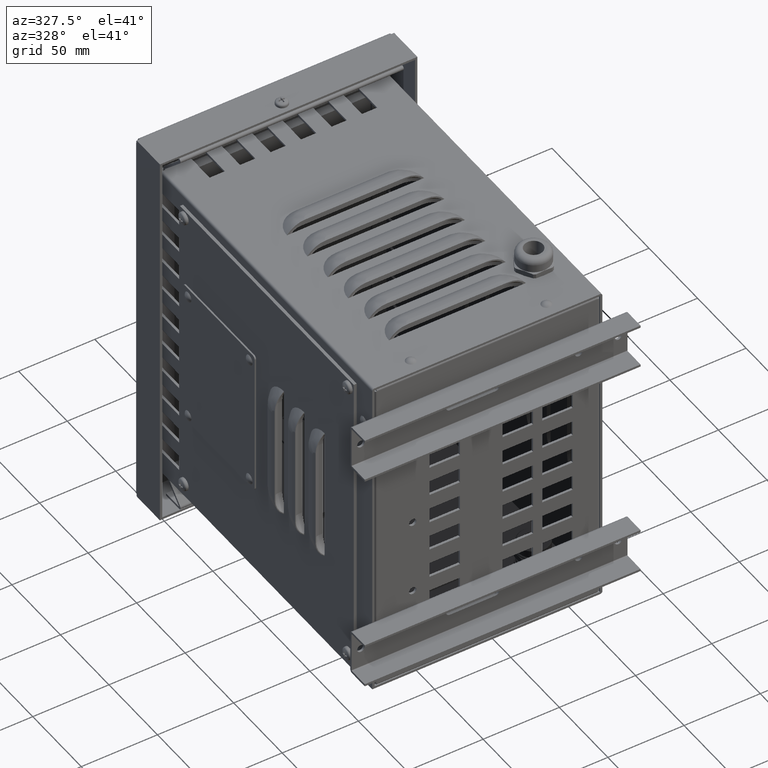
[diagram: clean part render]
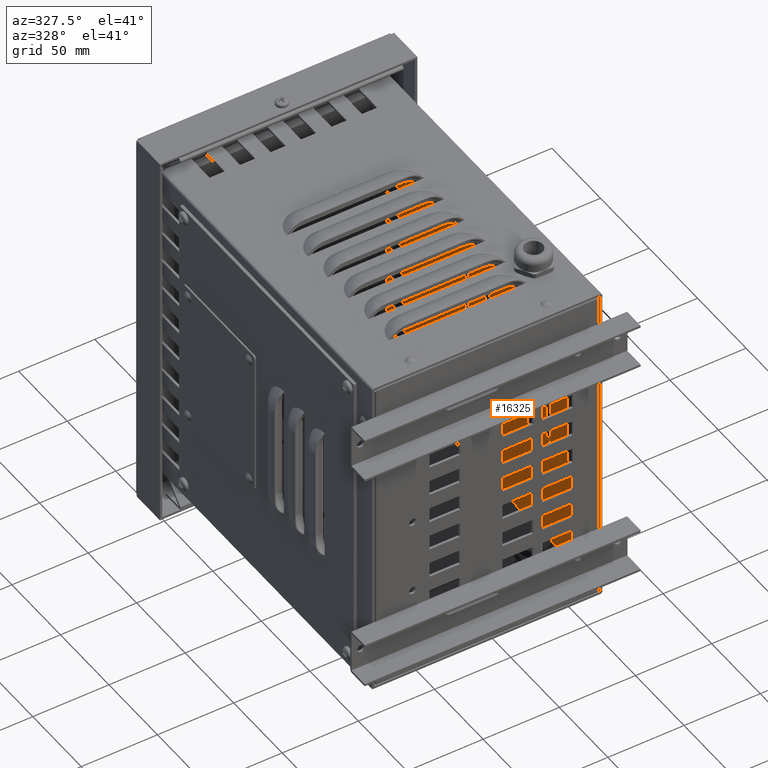
[diagram: same view with one face highlighted and labeled with its STEP entity id]
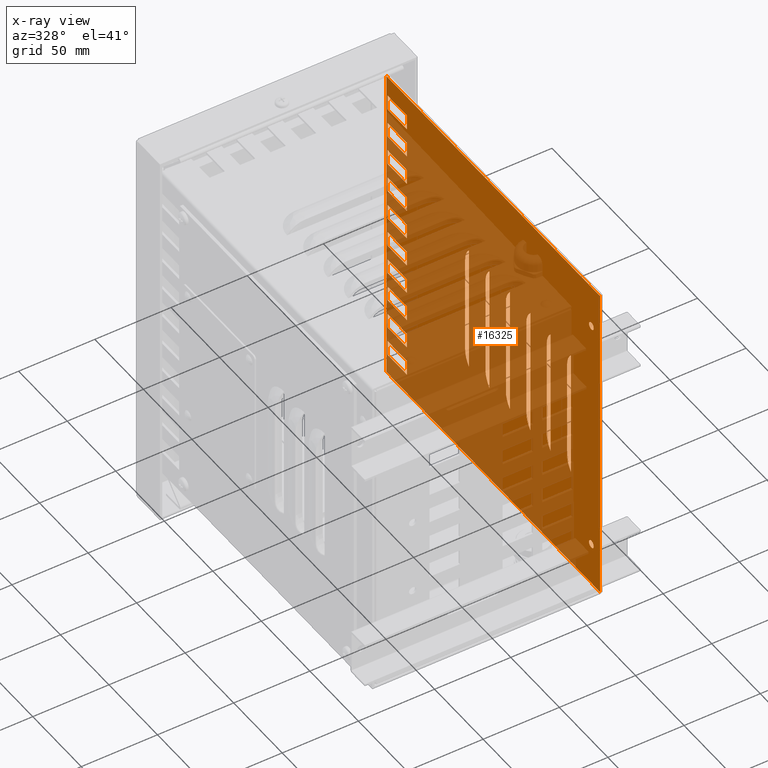
[diagram: x-ray of the same camera — body ghosted, the highlighted face saturated]
A machine part, auxiliary view. The second image highlights one B-rep face of the part: STEP entity #16325.
The next image is the same camera in x-ray: the body ghosted, the highlighted face saturated — about 69% of this face is hidden behind the body in this view.
In plain terms, the highlighted planar face has unit normal (1, -0, -0).
Its self-contained STEP definition (entity closure, byte-faithful):
#399=FACE_BOUND('',#3260,.T.);
#400=FACE_BOUND('',#3261,.T.);
#401=FACE_BOUND('',#3262,.T.);
#402=FACE_BOUND('',#3263,.T.);
#403=FACE_BOUND('',#3264,.T.);
#404=FACE_BOUND('',#3265,.T.);
#405=FACE_BOUND('',#3266,.T.);
#406=FACE_BOUND('',#3267,.T.);
#407=FACE_BOUND('',#3268,.T.);
#408=FACE_BOUND('',#3269,.T.);
#409=FACE_BOUND('',#3270,.T.);
#410=FACE_BOUND('',#3271,.T.);
#411=FACE_BOUND('',#3272,.T.);
#412=FACE_BOUND('',#3273,.T.);
#413=FACE_BOUND('',#3274,.T.);
#414=FACE_BOUND('',#3275,.T.);
#415=FACE_BOUND('',#3276,.T.);
#416=FACE_BOUND('',#3277,.T.);
#830=PLANE('',#17696);
#2345=FACE_OUTER_BOUND('',#3259,.T.);
#3259=EDGE_LOOP('',(#13436,#13437,#13438,#13439,#13440,#13441));
#3260=EDGE_LOOP('',(#13442,#13443,#13444,#13445));
#3261=EDGE_LOOP('',(#13446,#13447,#13448,#13449));
#3262=EDGE_LOOP('',(#13450,#13451,#13452,#13453));
#3263=EDGE_LOOP('',(#13454,#13455,#13456,#13457));
#3264=EDGE_LOOP('',(#13458,#13459,#13460,#13461));
#3265=EDGE_LOOP('',(#13462,#13463,#13464,#13465));
#3266=EDGE_LOOP('',(#13466,#13467,#13468,#13469));
#3267=EDGE_LOOP('',(#13470,#13471,#13472,#13473));
#3268=EDGE_LOOP('',(#13474,#13475,#13476,#13477));
#3269=EDGE_LOOP('',(#13478,#13479,#13480,#13481));
#3270=EDGE_LOOP('',(#13482,#13483,#13484,#13485));
#3271=EDGE_LOOP('',(#13486));
#3272=EDGE_LOOP('',(#13487));
#3273=EDGE_LOOP('',(#13488,#13489,#13490,#13491));
#3274=EDGE_LOOP('',(#13492,#13493,#13494,#13495));
#3275=EDGE_LOOP('',(#13496,#13497,#13498,#13499));
#3276=EDGE_LOOP('',(#13500,#13501,#13502,#13503));
#3277=EDGE_LOOP('',(#13504,#13505,#13506,#13507));
#3901=LINE('',#22993,#5454);
#4033=LINE('',#23303,#5586);
#4035=LINE('',#23312,#5588);
#4313=LINE('',#24633,#5866);
#4329=LINE('',#24676,#5882);
#4334=LINE('',#24689,#5887);
#4340=LINE('',#24730,#5893);
#4345=LINE('',#24743,#5898);
#4351=LINE('',#24784,#5904);
#4356=LINE('',#24797,#5909);
#4362=LINE('',#24838,#5915);
#4367=LINE('',#24851,#5920);
#4373=LINE('',#24892,#5926);
#4378=LINE('',#24905,#5931);
#4412=LINE('',#25166,#5965);
#4415=LINE('',#25170,#5968);
#4424=LINE('',#25246,#5977);
#4428=LINE('',#25253,#5981);
#4431=LINE('',#25259,#5984);
#4433=LINE('',#25262,#5986);
#4436=LINE('',#25270,#5989);
#4440=LINE('',#25277,#5993);
#4443=LINE('',#25283,#5996);
#4445=LINE('',#25286,#5998);
#4448=LINE('',#25294,#6001);
#4452=LINE('',#25301,#6005);
#4455=LINE('',#25307,#6008);
#4457=LINE('',#25310,#6010);
#4460=LINE('',#25318,#6013);
#4464=LINE('',#25325,#6017);
#4467=LINE('',#25331,#6020);
#4469=LINE('',#25334,#6022);
#4472=LINE('',#25342,#6025);
#4476=LINE('',#25349,#6029);
#4479=LINE('',#25355,#6032);
#4481=LINE('',#25358,#6034);
#4486=LINE('',#25378,#6039);
#4490=LINE('',#25385,#6043);
#4493=LINE('',#25391,#6046);
#4495=LINE('',#25394,#6048);
#4498=LINE('',#25402,#6051);
#4502=LINE('',#25409,#6055);
#4505=LINE('',#25415,#6058);
#4507=LINE('',#25418,#6060);
#4510=LINE('',#25426,#6063);
#4514=LINE('',#25433,#6067);
#4517=LINE('',#25439,#6070);
#4519=LINE('',#25442,#6072);
#4522=LINE('',#25450,#6075);
#4526=LINE('',#25457,#6079);
#4529=LINE('',#25463,#6082);
#4531=LINE('',#25466,#6084);
#4534=LINE('',#25474,#6087);
#4538=LINE('',#25481,#6091);
#4541=LINE('',#25487,#6094);
#4543=LINE('',#25490,#6096);
#4693=LINE('',#25814,#6246);
#4694=LINE('',#25817,#6247);
#5454=VECTOR('',#18555,10.);
#5586=VECTOR('',#18823,10.);
#5588=VECTOR('',#18835,10.);
#5866=VECTOR('',#19789,10.);
#5882=VECTOR('',#19835,10.);
#5887=VECTOR('',#19848,10.);
#5893=VECTOR('',#19872,10.);
#5898=VECTOR('',#19885,10.);
#5904=VECTOR('',#19909,10.);
#5909=VECTOR('',#19922,10.);
#5915=VECTOR('',#19946,10.);
#5920=VECTOR('',#19959,10.);
#5926=VECTOR('',#19983,10.);
#5931=VECTOR('',#19996,10.);
#5965=VECTOR('',#20164,10.);
#5968=VECTOR('',#20169,10.);
#5977=VECTOR('',#20212,10.);
#5981=VECTOR('',#20218,10.);
#5984=VECTOR('',#20223,10.);
#5986=VECTOR('',#20227,10.);
#5989=VECTOR('',#20232,10.);
#5993=VECTOR('',#20238,10.);
#5996=VECTOR('',#20243,10.);
#5998=VECTOR('',#20247,10.);
#6001=VECTOR('',#20252,10.);
#6005=VECTOR('',#20258,10.);
#6008=VECTOR('',#20263,10.);
#6010=VECTOR('',#20267,10.);
#6013=VECTOR('',#20272,10.);
#6017=VECTOR('',#20278,10.);
#6020=VECTOR('',#20283,10.);
#6022=VECTOR('',#20287,10.);
#6025=VECTOR('',#20292,10.);
#6029=VECTOR('',#20298,10.);
#6032=VECTOR('',#20303,10.);
#6034=VECTOR('',#20307,10.);
#6039=VECTOR('',#20326,10.);
#6043=VECTOR('',#20332,10.);
#6046=VECTOR('',#20337,10.);
#6048=VECTOR('',#20341,10.);
#6051=VECTOR('',#20346,10.);
#6055=VECTOR('',#20352,10.);
#6058=VECTOR('',#20357,10.);
#6060=VECTOR('',#20361,10.);
#6063=VECTOR('',#20366,10.);
#6067=VECTOR('',#20372,10.);
#6070=VECTOR('',#20377,10.);
#6072=VECTOR('',#20381,10.);
#6075=VECTOR('',#20386,10.);
#6079=VECTOR('',#20392,10.);
#6082=VECTOR('',#20397,10.);
#6084=VECTOR('',#20401,10.);
#6087=VECTOR('',#20406,10.);
#6091=VECTOR('',#20412,10.);
#6094=VECTOR('',#20417,10.);
#6096=VECTOR('',#20421,10.);
#6246=VECTOR('',#20709,10.);
#6247=VECTOR('',#20714,10.);
#7181=CIRCLE('',#17434,14.);
#7183=CIRCLE('',#17438,14.);
#7189=CIRCLE('',#17447,14.);
#7191=CIRCLE('',#17451,14.);
#7197=CIRCLE('',#17460,14.);
#7199=CIRCLE('',#17464,14.);
#7205=CIRCLE('',#17473,14.);
#7207=CIRCLE('',#17477,14.);
#7213=CIRCLE('',#17486,14.);
#7215=CIRCLE('',#17490,14.);
#7261=CIRCLE('',#17554,14.);
#7263=CIRCLE('',#17557,14.);
#7278=CIRCLE('',#17599,2.4);
#7280=CIRCLE('',#17602,2.4);
#7625=VERTEX_POINT('',#22989);
#7627=VERTEX_POINT('',#22992);
#7735=VERTEX_POINT('',#23297);
#7737=VERTEX_POINT('',#23301);
#7739=VERTEX_POINT('',#23310);
#8019=VERTEX_POINT('',#24664);
#8020=VERTEX_POINT('',#24665);
#8024=VERTEX_POINT('',#24675);
#8026=VERTEX_POINT('',#24681);
#8031=VERTEX_POINT('',#24718);
#8032=VERTEX_POINT('',#24719);
#8036=VERTEX_POINT('',#24729);
#8038=VERTEX_POINT('',#24735);
#8043=VERTEX_POINT('',#24772);
#8044=VERTEX_POINT('',#24773);
#8048=VERTEX_POINT('',#24783);
#8050=VERTEX_POINT('',#24789);
#8055=VERTEX_POINT('',#24826);
#8056=VERTEX_POINT('',#24827);
#8060=VERTEX_POINT('',#24837);
#8062=VERTEX_POINT('',#24843);
#8067=VERTEX_POINT('',#24880);
#8068=VERTEX_POINT('',#24881);
#8072=VERTEX_POINT('',#24891);
#8074=VERTEX_POINT('',#24897);
#8119=VERTEX_POINT('',#25144);
#8120=VERTEX_POINT('',#25145);
#8124=VERTEX_POINT('',#25155);
#8125=VERTEX_POINT('',#25156);
#8141=VERTEX_POINT('',#25243);
#8142=VERTEX_POINT('',#25245);
#8144=VERTEX_POINT('',#25251);
#8146=VERTEX_POINT('',#25257);
#8149=VERTEX_POINT('',#25267);
#8150=VERTEX_POINT('',#25269);
#8152=VERTEX_POINT('',#25275);
#8154=VERTEX_POINT('',#25281);
#8157=VERTEX_POINT('',#25291);
#8158=VERTEX_POINT('',#25293);
#8160=VERTEX_POINT('',#25299);
#8162=VERTEX_POINT('',#25305);
#8165=VERTEX_POINT('',#25315);
#8166=VERTEX_POINT('',#25317);
#8168=VERTEX_POINT('',#25323);
#8170=VERTEX_POINT('',#25329);
#8173=VERTEX_POINT('',#25339);
#8174=VERTEX_POINT('',#25341);
#8176=VERTEX_POINT('',#25347);
#8178=VERTEX_POINT('',#25353);
#8180=VERTEX_POINT('',#25362);
#8182=VERTEX_POINT('',#25368);
#8185=VERTEX_POINT('',#25375);
#8186=VERTEX_POINT('',#25377);
#8188=VERTEX_POINT('',#25383);
#8190=VERTEX_POINT('',#25389);
#8193=VERTEX_POINT('',#25399);
#8194=VERTEX_POINT('',#25401);
#8196=VERTEX_POINT('',#25407);
#8198=VERTEX_POINT('',#25413);
#8201=VERTEX_POINT('',#25423);
#8202=VERTEX_POINT('',#25425);
#8204=VERTEX_POINT('',#25431);
#8206=VERTEX_POINT('',#25437);
#8209=VERTEX_POINT('',#25447);
#8210=VERTEX_POINT('',#25449);
#8212=VERTEX_POINT('',#25455);
#8214=VERTEX_POINT('',#25461);
#8217=VERTEX_POINT('',#25471);
#8218=VERTEX_POINT('',#25473);
#8220=VERTEX_POINT('',#25479);
#8222=VERTEX_POINT('',#25485);
#8327=VERTEX_POINT('',#25812);
#9045=EDGE_CURVE('',#7627,#7625,#3901,.T.);
#9206=EDGE_CURVE('',#7735,#7737,#4033,.T.);
#9211=EDGE_CURVE('',#7737,#7739,#4035,.T.);
#9683=EDGE_CURVE('',#7735,#7625,#4313,.T.);
#9699=EDGE_CURVE('',#8019,#8020,#7181,.T.);
#9704=EDGE_CURVE('',#8020,#8024,#4329,.T.);
#9707=EDGE_CURVE('',#8024,#8026,#7183,.T.);
#9711=EDGE_CURVE('',#8026,#8019,#4334,.T.);
#9718=EDGE_CURVE('',#8031,#8032,#7189,.T.);
#9723=EDGE_CURVE('',#8032,#8036,#4340,.T.);
#9726=EDGE_CURVE('',#8036,#8038,#7191,.T.);
#9730=EDGE_CURVE('',#8038,#8031,#4345,.T.);
#9737=EDGE_CURVE('',#8043,#8044,#7197,.T.);
#9742=EDGE_CURVE('',#8044,#8048,#4351,.T.);
#9745=EDGE_CURVE('',#8048,#8050,#7199,.T.);
#9749=EDGE_CURVE('',#8050,#8043,#4356,.T.);
#9756=EDGE_CURVE('',#8055,#8056,#7205,.T.);
#9761=EDGE_CURVE('',#8056,#8060,#4362,.T.);
#9764=EDGE_CURVE('',#8060,#8062,#7207,.T.);
#9768=EDGE_CURVE('',#8062,#8055,#4367,.T.);
#9775=EDGE_CURVE('',#8067,#8068,#7213,.T.);
#9780=EDGE_CURVE('',#8068,#8072,#4373,.T.);
#9783=EDGE_CURVE('',#8072,#8074,#7215,.T.);
#9787=EDGE_CURVE('',#8074,#8067,#4378,.T.);
#9859=EDGE_CURVE('',#8119,#8120,#7261,.T.);
#9864=EDGE_CURVE('',#8124,#8125,#7263,.T.);
#9869=EDGE_CURVE('',#8125,#8119,#4412,.T.);
#9872=EDGE_CURVE('',#8120,#8124,#4415,.T.);
#9893=EDGE_CURVE('',#8142,#8141,#4424,.T.);
#9897=EDGE_CURVE('',#8141,#8144,#4428,.T.);
#9900=EDGE_CURVE('',#8144,#8146,#4431,.T.);
#9902=EDGE_CURVE('',#8146,#8142,#4433,.T.);
#9905=EDGE_CURVE('',#8150,#8149,#4436,.T.);
#9909=EDGE_CURVE('',#8149,#8152,#4440,.T.);
#9912=EDGE_CURVE('',#8152,#8154,#4443,.T.);
#9914=EDGE_CURVE('',#8154,#8150,#4445,.T.);
#9917=EDGE_CURVE('',#8158,#8157,#4448,.T.);
#9921=EDGE_CURVE('',#8157,#8160,#4452,.T.);
#9924=EDGE_CURVE('',#8160,#8162,#4455,.T.);
#9926=EDGE_CURVE('',#8162,#8158,#4457,.T.);
#9929=EDGE_CURVE('',#8166,#8165,#4460,.T.);
#9933=EDGE_CURVE('',#8165,#8168,#4464,.T.);
#9936=EDGE_CURVE('',#8168,#8170,#4467,.T.);
#9938=EDGE_CURVE('',#8170,#8166,#4469,.T.);
#9941=EDGE_CURVE('',#8174,#8173,#4472,.T.);
#9945=EDGE_CURVE('',#8173,#8176,#4476,.T.);
#9948=EDGE_CURVE('',#8176,#8178,#4479,.T.);
#9950=EDGE_CURVE('',#8178,#8174,#4481,.T.);
#9953=EDGE_CURVE('',#8180,#8180,#7278,.T.);
#9956=EDGE_CURVE('',#8182,#8182,#7280,.T.);
#9959=EDGE_CURVE('',#8186,#8185,#4486,.T.);
#9963=EDGE_CURVE('',#8185,#8188,#4490,.T.);
#9966=EDGE_CURVE('',#8188,#8190,#4493,.T.);
#9968=EDGE_CURVE('',#8190,#8186,#4495,.T.);
#9971=EDGE_CURVE('',#8194,#8193,#4498,.T.);
#9975=EDGE_CURVE('',#8193,#8196,#4502,.T.);
#9978=EDGE_CURVE('',#8196,#8198,#4505,.T.);
#9980=EDGE_CURVE('',#8198,#8194,#4507,.T.);
#9983=EDGE_CURVE('',#8202,#8201,#4510,.T.);
#9987=EDGE_CURVE('',#8201,#8204,#4514,.T.);
#9990=EDGE_CURVE('',#8204,#8206,#4517,.T.);
#9992=EDGE_CURVE('',#8206,#8202,#4519,.T.);
#9995=EDGE_CURVE('',#8210,#8209,#4522,.T.);
#9999=EDGE_CURVE('',#8209,#8212,#4526,.T.);
#10002=EDGE_CURVE('',#8212,#8214,#4529,.T.);
#10004=EDGE_CURVE('',#8214,#8210,#4531,.T.);
#10007=EDGE_CURVE('',#8218,#8217,#4534,.T.);
#10011=EDGE_CURVE('',#8217,#8220,#4538,.T.);
#10014=EDGE_CURVE('',#8220,#8222,#4541,.T.);
#10016=EDGE_CURVE('',#8222,#8218,#4543,.T.);
#10179=EDGE_CURVE('',#8327,#7739,#4693,.T.);
#10180=EDGE_CURVE('',#8327,#7627,#4694,.T.);
#13436=ORIENTED_EDGE('',*,*,#9206,.T.);
#13437=ORIENTED_EDGE('',*,*,#9211,.T.);
#13438=ORIENTED_EDGE('',*,*,#10179,.F.);
#13439=ORIENTED_EDGE('',*,*,#10180,.T.);
#13440=ORIENTED_EDGE('',*,*,#9045,.T.);
#13441=ORIENTED_EDGE('',*,*,#9683,.F.);
#13442=ORIENTED_EDGE('',*,*,#9707,.T.);
#13443=ORIENTED_EDGE('',*,*,#9711,.T.);
#13444=ORIENTED_EDGE('',*,*,#9699,.T.);
#13445=ORIENTED_EDGE('',*,*,#9704,.T.);
#13446=ORIENTED_EDGE('',*,*,#9726,.T.);
#13447=ORIENTED_EDGE('',*,*,#9730,.T.);
#13448=ORIENTED_EDGE('',*,*,#9718,.T.);
#13449=ORIENTED_EDGE('',*,*,#9723,.T.);
#13450=ORIENTED_EDGE('',*,*,#9745,.T.);
#13451=ORIENTED_EDGE('',*,*,#9749,.T.);
#13452=ORIENTED_EDGE('',*,*,#9737,.T.);
#13453=ORIENTED_EDGE('',*,*,#9742,.T.);
#13454=ORIENTED_EDGE('',*,*,#9764,.T.);
#13455=ORIENTED_EDGE('',*,*,#9768,.T.);
#13456=ORIENTED_EDGE('',*,*,#9756,.T.);
#13457=ORIENTED_EDGE('',*,*,#9761,.T.);
#13458=ORIENTED_EDGE('',*,*,#9783,.T.);
#13459=ORIENTED_EDGE('',*,*,#9787,.T.);
#13460=ORIENTED_EDGE('',*,*,#9775,.T.);
#13461=ORIENTED_EDGE('',*,*,#9780,.T.);
#13462=ORIENTED_EDGE('',*,*,#9864,.T.);
#13463=ORIENTED_EDGE('',*,*,#9869,.T.);
#13464=ORIENTED_EDGE('',*,*,#9859,.T.);
#13465=ORIENTED_EDGE('',*,*,#9872,.T.);
#13466=ORIENTED_EDGE('',*,*,#9893,.T.);
#13467=ORIENTED_EDGE('',*,*,#9897,.T.);
#13468=ORIENTED_EDGE('',*,*,#9900,.T.);
#13469=ORIENTED_EDGE('',*,*,#9902,.T.);
#13470=ORIENTED_EDGE('',*,*,#9905,.T.);
#13471=ORIENTED_EDGE('',*,*,#9909,.T.);
#13472=ORIENTED_EDGE('',*,*,#9912,.T.);
#13473=ORIENTED_EDGE('',*,*,#9914,.T.);
#13474=ORIENTED_EDGE('',*,*,#9917,.T.);
#13475=ORIENTED_EDGE('',*,*,#9921,.T.);
#13476=ORIENTED_EDGE('',*,*,#9924,.T.);
#13477=ORIENTED_EDGE('',*,*,#9926,.T.);
#13478=ORIENTED_EDGE('',*,*,#9929,.T.);
#13479=ORIENTED_EDGE('',*,*,#9933,.T.);
#13480=ORIENTED_EDGE('',*,*,#9936,.T.);
#13481=ORIENTED_EDGE('',*,*,#9938,.T.);
#13482=ORIENTED_EDGE('',*,*,#9941,.T.);
#13483=ORIENTED_EDGE('',*,*,#9945,.T.);
#13484=ORIENTED_EDGE('',*,*,#9948,.T.);
#13485=ORIENTED_EDGE('',*,*,#9950,.T.);
#13486=ORIENTED_EDGE('',*,*,#9953,.T.);
#13487=ORIENTED_EDGE('',*,*,#9956,.T.);
#13488=ORIENTED_EDGE('',*,*,#9959,.T.);
#13489=ORIENTED_EDGE('',*,*,#9963,.T.);
#13490=ORIENTED_EDGE('',*,*,#9966,.T.);
#13491=ORIENTED_EDGE('',*,*,#9968,.T.);
#13492=ORIENTED_EDGE('',*,*,#9971,.T.);
#13493=ORIENTED_EDGE('',*,*,#9975,.T.);
#13494=ORIENTED_EDGE('',*,*,#9978,.T.);
#13495=ORIENTED_EDGE('',*,*,#9980,.T.);
#13496=ORIENTED_EDGE('',*,*,#9983,.T.);
#13497=ORIENTED_EDGE('',*,*,#9987,.T.);
#13498=ORIENTED_EDGE('',*,*,#9990,.T.);
#13499=ORIENTED_EDGE('',*,*,#9992,.T.);
#13500=ORIENTED_EDGE('',*,*,#9995,.T.);
#13501=ORIENTED_EDGE('',*,*,#9999,.T.);
#13502=ORIENTED_EDGE('',*,*,#10002,.T.);
#13503=ORIENTED_EDGE('',*,*,#10004,.T.);
#13504=ORIENTED_EDGE('',*,*,#10007,.T.);
#13505=ORIENTED_EDGE('',*,*,#10011,.T.);
#13506=ORIENTED_EDGE('',*,*,#10014,.T.);
#13507=ORIENTED_EDGE('',*,*,#10016,.T.);
#16325=ADVANCED_FACE('',(#2345,#399,#400,#401,#402,#403,#404,#405,#406,
#407,#408,#409,#410,#411,#412,#413,#414,#415,#416),#830,.F.);
#17434=AXIS2_PLACEMENT_3D('',#24666,#19826,#19827);
#17438=AXIS2_PLACEMENT_3D('',#24682,#19840,#19841);
#17447=AXIS2_PLACEMENT_3D('',#24720,#19863,#19864);
#17451=AXIS2_PLACEMENT_3D('',#24736,#19877,#19878);
#17460=AXIS2_PLACEMENT_3D('',#24774,#19900,#19901);
#17464=AXIS2_PLACEMENT_3D('',#24790,#19914,#19915);
#17473=AXIS2_PLACEMENT_3D('',#24828,#19937,#19938);
#17477=AXIS2_PLACEMENT_3D('',#24844,#19951,#19952);
#17486=AXIS2_PLACEMENT_3D('',#24882,#19974,#19975);
#17490=AXIS2_PLACEMENT_3D('',#24898,#19988,#19989);
#17554=AXIS2_PLACEMENT_3D('',#25146,#20146,#20147);
#17557=AXIS2_PLACEMENT_3D('',#25157,#20155,#20156);
#17599=AXIS2_PLACEMENT_3D('',#25364,#20313,#20314);
#17602=AXIS2_PLACEMENT_3D('',#25370,#20320,#20321);
#17696=AXIS2_PLACEMENT_3D('',#25821,#20720,#20721);
#18555=DIRECTION('',(-3.2349155729169E-18,1.,3.23491557291718E-18));
#18823=DIRECTION('',(3.23491557291691E-18,-1.,-2.52323414687541E-18));
#18835=DIRECTION('',(3.23491557291691E-18,-1.,-2.52323414687541E-18));
#19789=DIRECTION('',(2.30314065722459E-14,-6.84367530240512E-14,1.));
#19826=DIRECTION('center_axis',(1.,3.23491557291696E-18,-1.75324607773309E-14));
#19827=DIRECTION('ref_axis',(3.09721846659277E-26,1.,2.09229459155072E-12));
#19835=DIRECTION('',(-1.75324607773309E-14,0.,-1.));
#19840=DIRECTION('center_axis',(1.,3.23491557291696E-18,-1.75324607773309E-14));
#19841=DIRECTION('ref_axis',(-1.03599234705953E-14,0.714285714283133,-0.6998542122264));
#19848=DIRECTION('',(1.75324607773309E-14,-5.38289951332934E-16,1.));
#19863=DIRECTION('center_axis',(1.,3.23491557291696E-18,-1.75324607773309E-14));
#19864=DIRECTION('ref_axis',(3.09721846659277E-26,1.,2.09229459155072E-12));
#19872=DIRECTION('',(-1.75324607773309E-14,0.,-1.));
#19877=DIRECTION('center_axis',(1.,3.23491557291696E-18,-1.75324607773309E-14));
#19878=DIRECTION('ref_axis',(-1.03599234705953E-14,0.714285714283133,-0.6998542122264));
#19885=DIRECTION('',(1.75324607773309E-14,-5.38289951332934E-16,1.));
#19900=DIRECTION('center_axis',(1.,3.23491557291696E-18,-1.75324607773309E-14));
#19901=DIRECTION('ref_axis',(3.09721846659277E-26,1.,2.09229459155072E-12));
#19909=DIRECTION('',(-1.75324607773309E-14,0.,-1.));
#19914=DIRECTION('center_axis',(1.,3.23491557291696E-18,-1.75324607773309E-14));
#19915=DIRECTION('ref_axis',(-1.03599234705953E-14,0.714285714283133,-0.6998542122264));
#19922=DIRECTION('',(1.75324607773309E-14,-5.38289951332934E-16,1.));
#19937=DIRECTION('center_axis',(1.,3.23491557291696E-18,-1.75324607773309E-14));
#19938=DIRECTION('ref_axis',(3.09721846659277E-26,1.,2.09229459155072E-12));
#19946=DIRECTION('',(-1.75324607773309E-14,0.,-1.));
#19951=DIRECTION('center_axis',(1.,3.23491557291696E-18,-1.75324607773309E-14));
#19952=DIRECTION('ref_axis',(-1.03599234705953E-14,0.714285714283133,-0.6998542122264));
#19959=DIRECTION('',(1.75324607773309E-14,-5.38289951332934E-16,1.));
#19974=DIRECTION('center_axis',(1.,3.23491557291696E-18,-1.75324607773309E-14));
#19975=DIRECTION('ref_axis',(3.09721846659277E-26,1.,2.09229459155072E-12));
#19983=DIRECTION('',(-1.75324607773309E-14,0.,-1.));
#19988=DIRECTION('center_axis',(1.,3.23491557291696E-18,-1.75324607773309E-14));
#19989=DIRECTION('ref_axis',(-1.03599234705953E-14,0.714285714283133,-0.6998542122264));
#19996=DIRECTION('',(1.75324607773309E-14,-5.38289951332934E-16,1.));
#20146=DIRECTION('center_axis',(1.,3.23491557291696E-18,-1.75324607773309E-14));
#20147=DIRECTION('ref_axis',(3.09721846659277E-26,1.,2.09229459155072E-12));
#20155=DIRECTION('center_axis',(1.,3.23491557291696E-18,-1.75324607773309E-14));
#20156=DIRECTION('ref_axis',(-1.03599234705953E-14,0.714285714283133,-0.6998542122264));
#20164=DIRECTION('',(1.75324607773309E-14,-5.38289951332934E-16,1.));
#20169=DIRECTION('',(-1.75324607773309E-14,-2.67310091770039E-32,-1.));
#20212=DIRECTION('',(1.75324607773309E-14,0.,1.));
#20218=DIRECTION('',(3.23491557291696E-18,-1.,-5.67160304001434E-32));
#20223=DIRECTION('',(-1.75324607773309E-14,0.,-1.));
#20227=DIRECTION('',(-3.23491557291696E-18,1.,5.67160304001434E-32));
#20232=DIRECTION('',(3.23491557291696E-18,-1.,-5.6716030400144E-32));
#20238=DIRECTION('',(-1.75324607773309E-14,0.,-1.));
#20243=DIRECTION('',(-3.23491557291696E-18,1.,5.6716030400144E-32));
#20247=DIRECTION('',(1.75324607773309E-14,0.,1.));
#20252=DIRECTION('',(3.23491557291696E-18,-1.,-5.6716030400144E-32));
#20258=DIRECTION('',(-1.75324607773309E-14,0.,-1.));
#20263=DIRECTION('',(-3.23491557291696E-18,1.,5.6716030400144E-32));
#20267=DIRECTION('',(1.75324607773309E-14,0.,1.));
#20272=DIRECTION('',(-1.75324607773309E-14,0.,-1.));
#20278=DIRECTION('',(-3.23491557291696E-18,1.,5.67160304001427E-32));
#20283=DIRECTION('',(1.75324607773309E-14,0.,1.));
#20287=DIRECTION('',(3.23491557291696E-18,-1.,-5.67160304001427E-32));
#20292=DIRECTION('',(3.23491557291696E-18,-1.,-5.67160304001427E-32));
#20298=DIRECTION('',(-1.75324607773309E-14,0.,-1.));
#20303=DIRECTION('',(-3.23491557291696E-18,1.,5.67160304001427E-32));
#20307=DIRECTION('',(1.75324607773309E-14,0.,1.));
#20313=DIRECTION('center_axis',(1.,3.23491557291696E-18,-1.75324607773309E-14));
#20314=DIRECTION('ref_axis',(1.77635683940025E-14,0.,1.));
#20320=DIRECTION('center_axis',(1.,3.23491557291696E-18,-1.75324607773309E-14));
#20321=DIRECTION('ref_axis',(2.368475785867E-14,0.,1.));
#20326=DIRECTION('',(1.75324607773309E-14,0.,1.));
#20332=DIRECTION('',(3.23491557291696E-18,-1.,-5.67160304001427E-32));
#20337=DIRECTION('',(-1.75324607773309E-14,0.,-1.));
#20341=DIRECTION('',(-3.23491557291696E-18,1.,5.67160304001427E-32));
#20346=DIRECTION('',(-1.75324607773309E-14,0.,-1.));
#20352=DIRECTION('',(-3.23491557291696E-18,1.,5.6716030400144E-32));
#20357=DIRECTION('',(1.75324607773309E-14,0.,1.));
#20361=DIRECTION('',(3.23491557291696E-18,-1.,-5.6716030400144E-32));
#20366=DIRECTION('',(1.75324607773309E-14,0.,1.));
#20372=DIRECTION('',(3.23491557291696E-18,-1.,-5.6716030400144E-32));
#20377=DIRECTION('',(-1.75324607773309E-14,0.,-1.));
#20381=DIRECTION('',(-3.23491557291696E-18,1.,5.6716030400144E-32));
#20386=DIRECTION('',(3.23491557291696E-18,-1.,-5.67160304001434E-32));
#20392=DIRECTION('',(-1.75324607773309E-14,0.,-1.));
#20397=DIRECTION('',(-3.23491557291696E-18,1.,5.67160304001434E-32));
#20401=DIRECTION('',(1.75324607773309E-14,0.,1.));
#20406=DIRECTION('',(1.75324607773309E-14,0.,1.));
#20412=DIRECTION('',(3.23491557291696E-18,-1.,-5.67160304001434E-32));
#20417=DIRECTION('',(-1.75324607773309E-14,0.,-1.));
#20421=DIRECTION('',(-3.23491557291696E-18,1.,5.67160304001434E-32));
#20709=DIRECTION('',(-1.75303360221084E-14,3.23491557291712E-18,-1.));
#20714=DIRECTION('',(-3.2349155729169E-18,1.,3.23491557291718E-18));
#20720=DIRECTION('center_axis',(1.,3.23491557291696E-18,-1.75324607773309E-14));
#20721=DIRECTION('ref_axis',(-1.75324607773309E-14,3.23491557291712E-18,
-1.));
#22989=CARTESIAN_POINT('',(149.5,220.,218.499000000001));
#22992=CARTESIAN_POINT('',(149.499999999999,218.499000000002,218.498999999998));
#22993=CARTESIAN_POINT('',(149.5,110.,218.499000000001));
#23297=CARTESIAN_POINT('',(149.499999999996,220.000000000015,1.50100000000087));
#23301=CARTESIAN_POINT('',(149.499999999996,218.499000000002,1.50100000000087));
#23303=CARTESIAN_POINT('',(149.499999999996,165.000000000007,1.50100000000086));
#23310=CARTESIAN_POINT('',(149.499999999996,1.48518323372101E-11,1.50100000000087));
#23312=CARTESIAN_POINT('',(149.499999999996,165.000000000007,1.50100000000086));
#24633=CARTESIAN_POINT('',(149.5,220.,219.537296372012));
#24664=CARTESIAN_POINT('',(149.499999999999,139.000000000005,143.370791571693));
#24665=CARTESIAN_POINT('',(149.499999999999,135.000000000005,153.168750542869));
#24666=CARTESIAN_POINT('Origin',(149.499999999999,125.000000000005,143.370791571664));
#24675=CARTESIAN_POINT('',(149.499999999997,135.000000000005,67.572832600459));
#24676=CARTESIAN_POINT('',(149.499999999998,135.000000000005,110.069719878835));
#24681=CARTESIAN_POINT('',(149.499999999998,139.000000000005,77.3707915716348));
#24682=CARTESIAN_POINT('Origin',(149.499999999998,125.000000000005,77.3707915716639));
#24689=CARTESIAN_POINT('',(149.499999999998,139.000000000005,126.56971987885));
#24718=CARTESIAN_POINT('',(149.499999999999,118.000000000005,143.370791571693));
#24719=CARTESIAN_POINT('',(149.499999999999,114.000000000005,153.168750542869));
#24720=CARTESIAN_POINT('Origin',(149.499999999999,104.000000000005,143.370791571664));
#24729=CARTESIAN_POINT('',(149.499999999997,114.000000000005,67.572832600459));
#24730=CARTESIAN_POINT('',(149.499999999998,114.000000000005,110.069719878835));
#24735=CARTESIAN_POINT('',(149.499999999998,118.000000000005,77.3707915716348));
#24736=CARTESIAN_POINT('Origin',(149.499999999998,104.000000000005,77.3707915716639));
#24743=CARTESIAN_POINT('',(149.499999999998,118.000000000005,126.56971987885));
#24772=CARTESIAN_POINT('',(149.499999999999,97.0000000000054,143.370791571693));
#24773=CARTESIAN_POINT('',(149.499999999999,93.0000000000053,153.168750542869));
#24774=CARTESIAN_POINT('Origin',(149.499999999999,83.0000000000054,143.370791571664));
#24783=CARTESIAN_POINT('',(149.499999999997,93.0000000000053,67.572832600459));
#24784=CARTESIAN_POINT('',(149.499999999998,93.0000000000053,110.069719878835));
#24789=CARTESIAN_POINT('',(149.499999999998,97.0000000000054,77.3707915716348));
#24790=CARTESIAN_POINT('Origin',(149.499999999998,83.0000000000054,77.3707915716639));
#24797=CARTESIAN_POINT('',(149.499999999998,97.0000000000054,126.56971987885));
#24826=CARTESIAN_POINT('',(149.499999999999,76.0000000000054,143.370791571693));
#24827=CARTESIAN_POINT('',(149.499999999999,72.0000000000053,153.168750542869));
#24828=CARTESIAN_POINT('Origin',(149.499999999999,62.0000000000054,143.370791571664));
#24837=CARTESIAN_POINT('',(149.499999999997,72.0000000000053,67.572832600459));
#24838=CARTESIAN_POINT('',(149.499999999998,72.0000000000053,110.069719878835));
#24843=CARTESIAN_POINT('',(149.499999999998,76.0000000000054,77.3707915716348));
#24844=CARTESIAN_POINT('Origin',(149.499999999998,62.0000000000054,77.3707915716639));
#24851=CARTESIAN_POINT('',(149.499999999998,76.0000000000054,126.56971987885));
#24880=CARTESIAN_POINT('',(149.499999999999,55.0000000000054,143.370791571693));
#24881=CARTESIAN_POINT('',(149.499999999999,51.0000000000053,153.168750542869));
#24882=CARTESIAN_POINT('Origin',(149.499999999999,41.0000000000054,143.370791571664));
#24891=CARTESIAN_POINT('',(149.499999999997,51.0000000000053,67.572832600459));
#24892=CARTESIAN_POINT('',(149.499999999998,51.0000000000053,110.069719878835));
#24897=CARTESIAN_POINT('',(149.499999999998,55.0000000000054,77.3707915716348));
#24898=CARTESIAN_POINT('Origin',(149.499999999998,41.0000000000054,77.3707915716639));
#24905=CARTESIAN_POINT('',(149.499999999998,55.0000000000054,126.56971987885));
#25144=CARTESIAN_POINT('',(149.499999999999,34.0000000000054,143.370791571693));
#25145=CARTESIAN_POINT('',(149.499999999999,30.0000000000053,153.168750542869));
#25146=CARTESIAN_POINT('Origin',(149.499999999999,20.0000000000054,143.370791571664));
#25155=CARTESIAN_POINT('',(149.499999999997,30.0000000000053,67.572832600459));
#25156=CARTESIAN_POINT('',(149.499999999998,34.0000000000054,77.3707915716348));
#25157=CARTESIAN_POINT('Origin',(149.499999999998,20.0000000000054,77.3707915716639));
#25166=CARTESIAN_POINT('',(149.499999999998,34.0000000000054,126.56971987885));
#25170=CARTESIAN_POINT('',(149.499999999998,30.0000000000053,88.6707403932328));
#25243=CARTESIAN_POINT('',(149.499999999997,219.,44.9999999999983));
#25245=CARTESIAN_POINT('',(149.499999999997,219.,34.9999999999983));
#25246=CARTESIAN_POINT('',(149.499999999998,219.,77.3843240930024));
#25251=CARTESIAN_POINT('',(149.499999999997,199.,44.9999999999983));
#25253=CARTESIAN_POINT('',(149.499999999997,154.5,44.9999999999983));
#25257=CARTESIAN_POINT('',(149.499999999997,199.,34.9999999999983));
#25259=CARTESIAN_POINT('',(149.499999999997,199.,72.3843240930024));
#25262=CARTESIAN_POINT('',(149.499999999997,164.5,34.9999999999983));
#25267=CARTESIAN_POINT('',(149.499999999998,199.,84.9999999999982));
#25269=CARTESIAN_POINT('',(149.499999999998,219.,84.9999999999982));
#25270=CARTESIAN_POINT('',(149.499999999998,154.5,84.9999999999982));
#25275=CARTESIAN_POINT('',(149.499999999997,199.,74.9999999999982));
#25277=CARTESIAN_POINT('',(149.499999999998,199.,92.3843240930024));
#25281=CARTESIAN_POINT('',(149.499999999997,219.,74.9999999999982));
#25283=CARTESIAN_POINT('',(149.499999999998,164.5,74.9999999999982));
#25286=CARTESIAN_POINT('',(149.499999999998,219.,97.3843240930024));
#25291=CARTESIAN_POINT('',(149.499999999998,199.,124.999999999998));
#25293=CARTESIAN_POINT('',(149.499999999998,219.,124.999999999998));
#25294=CARTESIAN_POINT('',(149.499999999998,154.5,124.999999999998));
#25299=CARTESIAN_POINT('',(149.499999999998,199.,114.999999999998));
#25301=CARTESIAN_POINT('',(149.499999999998,199.,112.384324093002));
#25305=CARTESIAN_POINT('',(149.499999999998,219.,114.999999999998));
#25307=CARTESIAN_POINT('',(149.499999999998,164.5,114.999999999998));
#25310=CARTESIAN_POINT('',(149.499999999998,219.,117.384324093002));
#25315=CARTESIAN_POINT('',(149.499999999999,199.,154.999999999998));
#25317=CARTESIAN_POINT('',(149.499999999999,199.,164.999999999998));
#25318=CARTESIAN_POINT('',(149.499999999999,199.,132.384324093002));
#25323=CARTESIAN_POINT('',(149.499999999999,219.,154.999999999998));
#25325=CARTESIAN_POINT('',(149.499999999999,164.5,154.999999999998));
#25329=CARTESIAN_POINT('',(149.499999999999,219.,164.999999999998));
#25331=CARTESIAN_POINT('',(149.499999999999,219.,137.384324093002));
#25334=CARTESIAN_POINT('',(149.499999999999,154.5,164.999999999998));
#25339=CARTESIAN_POINT('',(149.5,199.,204.999999999998));
#25341=CARTESIAN_POINT('',(149.5,219.,204.999999999998));
#25342=CARTESIAN_POINT('',(149.5,154.5,204.999999999998));
#25347=CARTESIAN_POINT('',(149.5,199.,194.999999999998));
#25349=CARTESIAN_POINT('',(149.499999999999,199.,152.384324093002));
#25353=CARTESIAN_POINT('',(149.5,219.,194.999999999998));
#25355=CARTESIAN_POINT('',(149.5,164.5,194.999999999998));
#25358=CARTESIAN_POINT('',(149.499999999999,219.,157.384324093002));
#25362=CARTESIAN_POINT('',(149.499999999997,8.99999999999999,27.599999999998));
#25364=CARTESIAN_POINT('Origin',(149.499999999997,8.99999999999999,29.999999999998));
#25368=CARTESIAN_POINT('',(149.499999999999,8.99999999999997,187.599999999998));
#25370=CARTESIAN_POINT('Origin',(149.5,8.99999999999997,189.999999999998));
#25375=CARTESIAN_POINT('',(149.499999999999,219.,184.999999999998));
#25377=CARTESIAN_POINT('',(149.499999999999,219.,174.999999999998));
#25378=CARTESIAN_POINT('',(149.499999999999,219.,147.384324093002));
#25383=CARTESIAN_POINT('',(149.499999999999,199.,184.999999999998));
#25385=CARTESIAN_POINT('',(149.499999999999,154.5,184.999999999998));
#25389=CARTESIAN_POINT('',(149.499999999999,199.,174.999999999998));
#25391=CARTESIAN_POINT('',(149.499999999999,199.,142.384324093002));
#25394=CARTESIAN_POINT('',(149.499999999999,164.5,174.999999999998));
#25399=CARTESIAN_POINT('',(149.499999999999,199.,134.999999999998));
#25401=CARTESIAN_POINT('',(149.499999999999,199.,144.999999999998));
#25402=CARTESIAN_POINT('',(149.499999999998,199.,122.384324093002));
#25407=CARTESIAN_POINT('',(149.499999999999,219.,134.999999999998));
#25409=CARTESIAN_POINT('',(149.499999999999,164.5,134.999999999998));
#25413=CARTESIAN_POINT('',(149.499999999999,219.,144.999999999998));
#25415=CARTESIAN_POINT('',(149.499999999998,219.,127.384324093002));
#25418=CARTESIAN_POINT('',(149.499999999999,154.5,144.999999999998));
#25423=CARTESIAN_POINT('',(149.499999999998,219.,104.999999999998));
#25425=CARTESIAN_POINT('',(149.499999999998,219.,94.9999999999982));
#25426=CARTESIAN_POINT('',(149.499999999998,219.,107.384324093002));
#25431=CARTESIAN_POINT('',(149.499999999998,199.,104.999999999998));
#25433=CARTESIAN_POINT('',(149.499999999998,154.5,104.999999999998));
#25437=CARTESIAN_POINT('',(149.499999999998,199.,94.9999999999982));
#25439=CARTESIAN_POINT('',(149.499999999998,199.,102.384324093002));
#25442=CARTESIAN_POINT('',(149.499999999998,164.5,94.9999999999982));
#25447=CARTESIAN_POINT('',(149.499999999997,199.,64.9999999999983));
#25449=CARTESIAN_POINT('',(149.499999999997,219.,64.9999999999983));
#25450=CARTESIAN_POINT('',(149.499999999997,154.5,64.9999999999983));
#25455=CARTESIAN_POINT('',(149.499999999997,199.,54.9999999999982));
#25457=CARTESIAN_POINT('',(149.499999999998,199.,82.3843240930024));
#25461=CARTESIAN_POINT('',(149.499999999997,219.,54.9999999999982));
#25463=CARTESIAN_POINT('',(149.499999999997,164.5,54.9999999999982));
#25466=CARTESIAN_POINT('',(149.499999999998,219.,87.3843240930024));
#25471=CARTESIAN_POINT('',(149.499999999997,219.,24.9999999999983));
#25473=CARTESIAN_POINT('',(149.499999999996,219.,14.9999999999983));
#25474=CARTESIAN_POINT('',(149.499999999997,219.,67.3843240930024));
#25479=CARTESIAN_POINT('',(149.499999999997,199.,24.9999999999983));
#25481=CARTESIAN_POINT('',(149.499999999997,154.5,24.9999999999982));
#25485=CARTESIAN_POINT('',(149.499999999996,199.,14.9999999999983));
#25487=CARTESIAN_POINT('',(149.499999999997,199.,62.3843240930024));
#25490=CARTESIAN_POINT('',(149.499999999996,164.5,14.9999999999982));
#25812=CARTESIAN_POINT('',(149.5,-6.98556167056296E-14,218.499000000001));
#25814=CARTESIAN_POINT('',(149.5,-6.98556167056296E-14,218.499000000001));
#25817=CARTESIAN_POINT('',(149.5,110.,218.499000000001));
#25821=CARTESIAN_POINT('Origin',(149.499999999998,110.,109.768648186007));